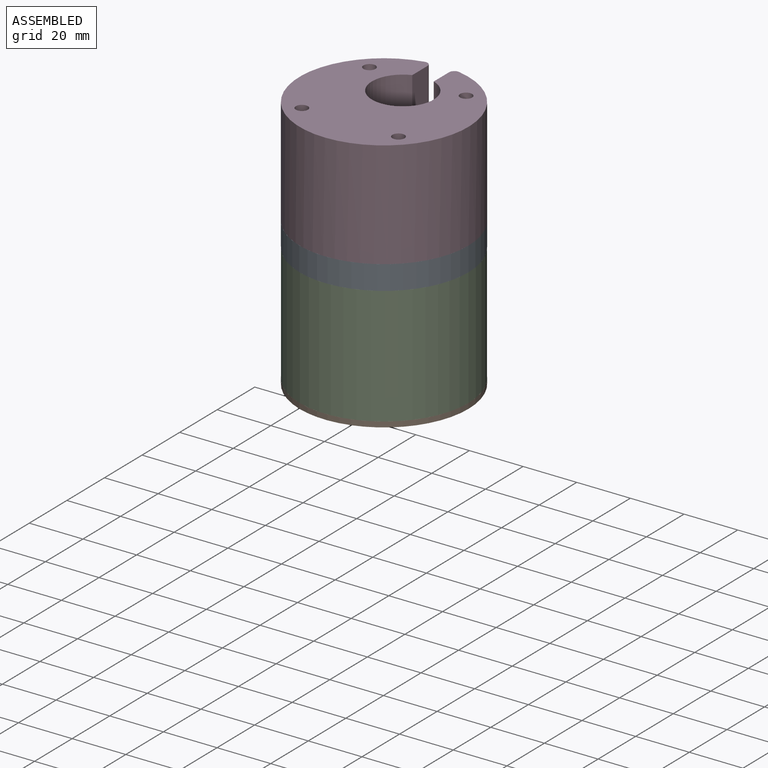
[diagram: assembled view]
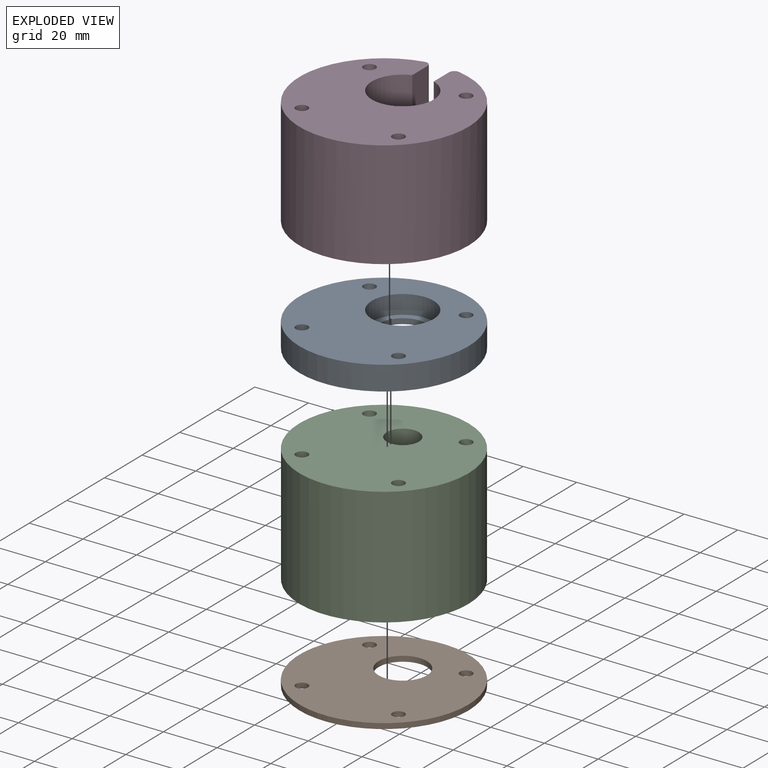
[diagram: exploded view]
GUIDED TOUR — MATED ASSEMBLY (Onshape document 0765a1a9eaeadbc00bb44b96, AutoMate assembly 0765a1a9eaeadbc00bb44b96_00cfe46cb343527916e07001_60054153e6afa63aeb58dfe5_default)

This assembly has 4 components, labeled P0..P3 below (a component is one placed occurrence of a part; the same part can appear more than once), held together by 3 mates. A mate is a constraint between two components; its type names the relative motion it leaves free:
  FASTENED — locks the two components together rigidly (no relative motion).
Axis/direction vectors are unit vectors and 'through' points are millimeter coordinates, both in the assembly's world frame.

MATES
  1. FASTENED "Fastened 2": P2 <-> P0, direction (0.000, 0.000, 1.000) through (-1.60, 12.60, 25.58) mm
  2. FASTENED "Fastened 3": P0 <-> P3, direction (0.000, 0.000, 1.000) through (-1.60, 12.60, 34.58) mm
  3. FASTENED "Fastened 1": P1 <-> P2, direction (0.000, 0.000, 1.000) through (-1.60, 12.60, -18.42) mm

ASSEMBLY ORDER
  1. P3 — the base component [order verified]
  2. P0 [order verified]
  3. P2 [order verified]
  4. P1 [order verified]
Order-tag legend:
  [order verified] — this step's position reverses a verified removal order: the component was checked to insert without passing through the ones already placed.

Of the 4 components, 1 carries the full construction recipe — the FeatureScript program that regenerates the part's solid from scratch; the rest are supplied as boundary geometry only.
Each toured component is shown spotlighted twice — in the assembled view, then in the exploded view, where a leader line traces a displaced component back to its assembled socket (saturated green if recipe-attached, orange if geometry-only; every other component desaturated gray) — followed by its recipe or geometry summary and the mates that hold it.
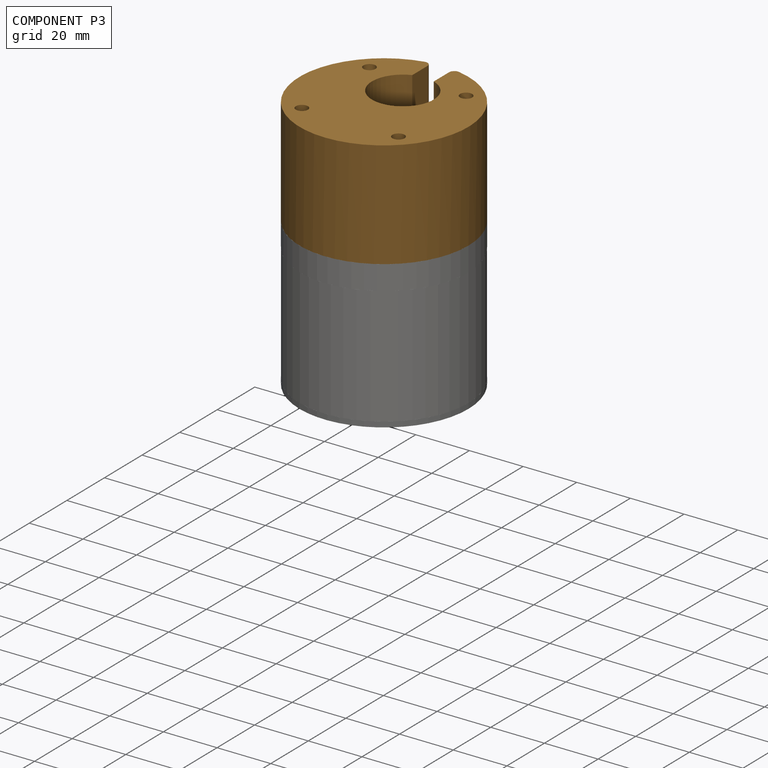
[diagram: component P3 — assembled]
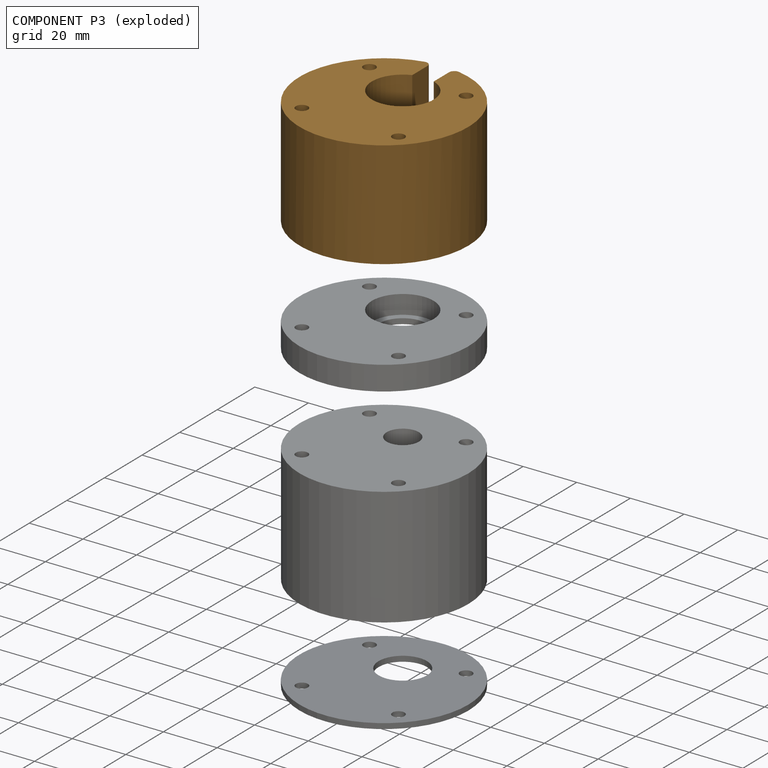
[diagram: component P3 — exploded]
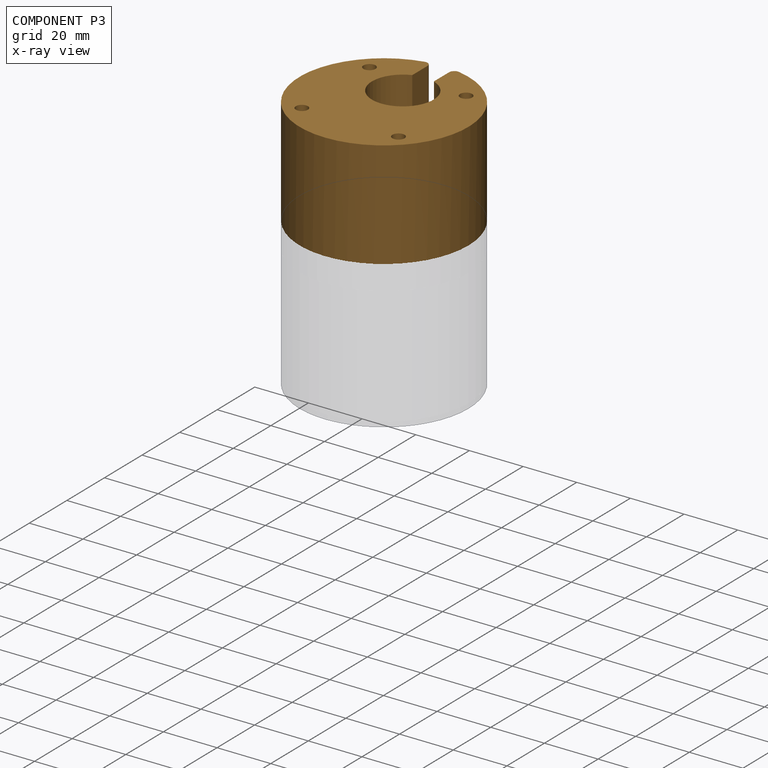
[diagram: component P3 — x-ray view]
COMPONENT P3 — geometry summary (no construction recipe available for this part):
  bounding box: 65.6 x 63.0 x 40.0 mm
  B-rep topology: 1 solid, 16 faces, 84 edges
  volume: 103326 mm^3 (63% of its bounding box)
  symmetry: mirror-symmetric across its x mid-plane
Held by: FASTENED mate "Fastened 3" to P0.
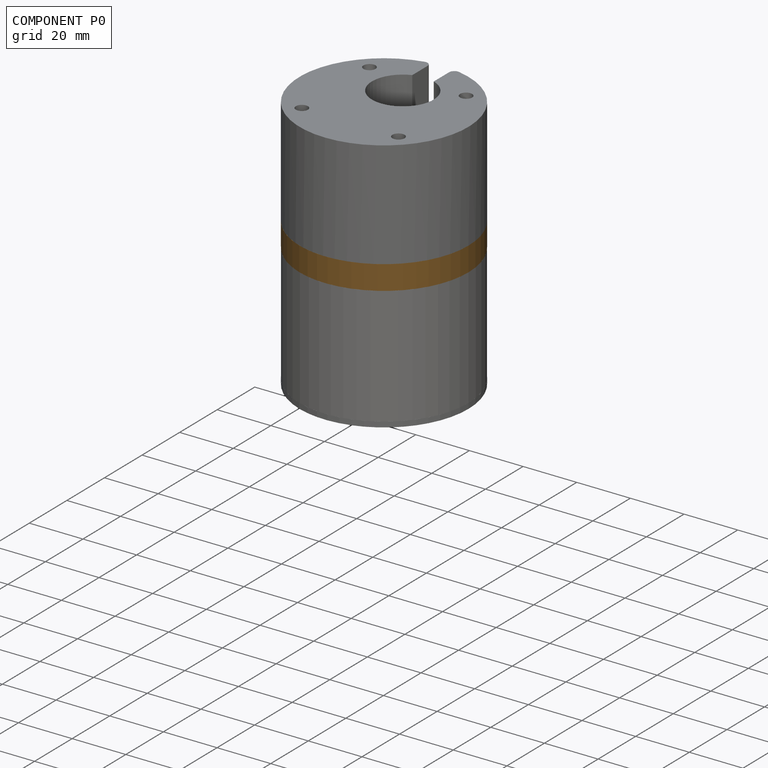
[diagram: component P0 — assembled]
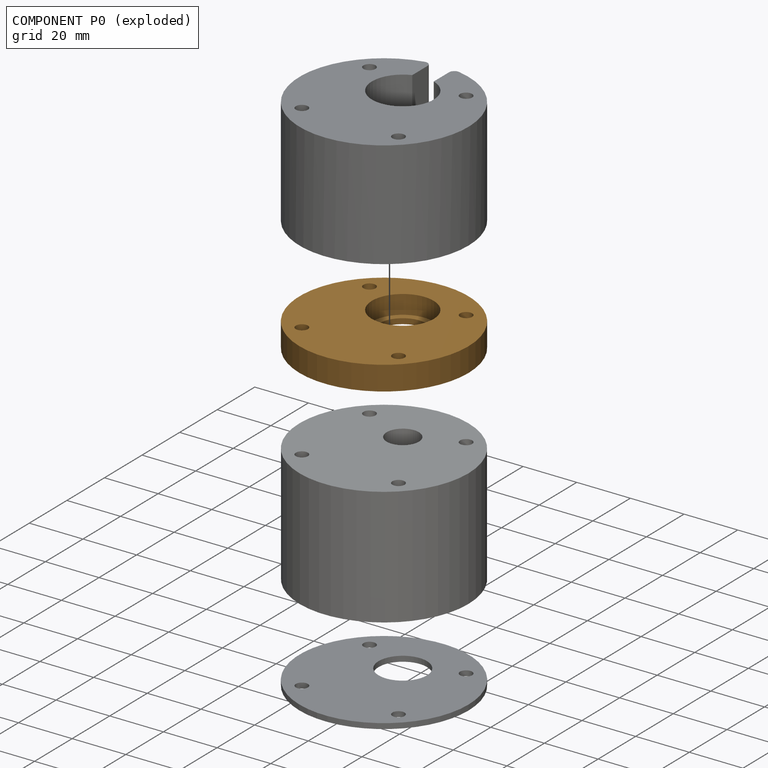
[diagram: component P0 — exploded]
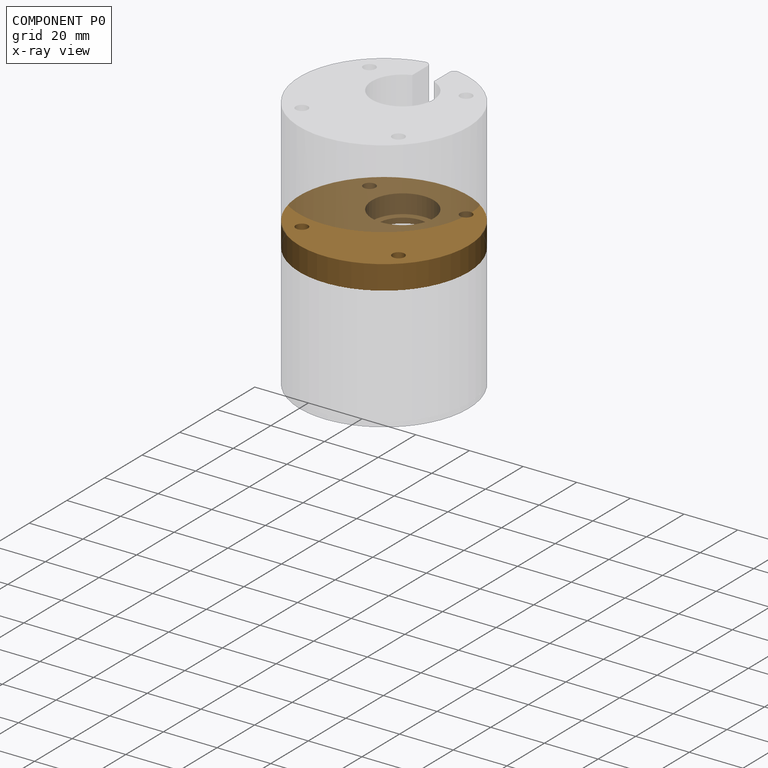
[diagram: component P0 — x-ray view]
COMPONENT P0 — geometry summary (no construction recipe available for this part):
  bounding box: 63.0 x 63.0 x 9.0 mm
  B-rep topology: 1 solid, 10 faces, 42 edges
  volume: 24065 mm^3 (67% of its bounding box)
  symmetry: mirror-symmetric across its x mid-plane
Held by: FASTENED mate "Fastened 2" to P2; FASTENED mate "Fastened 3" to P3.
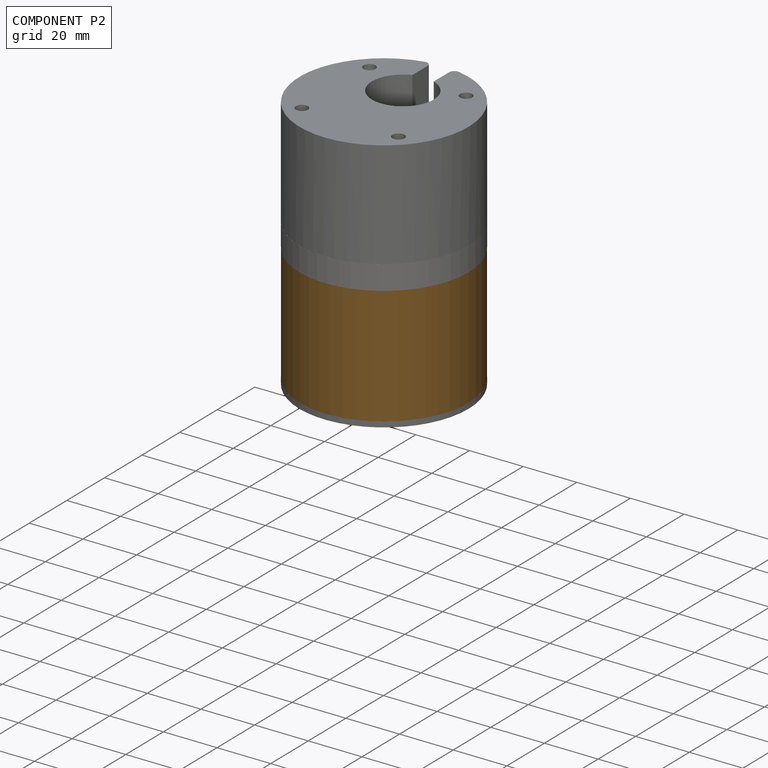
[diagram: component P2 — assembled]
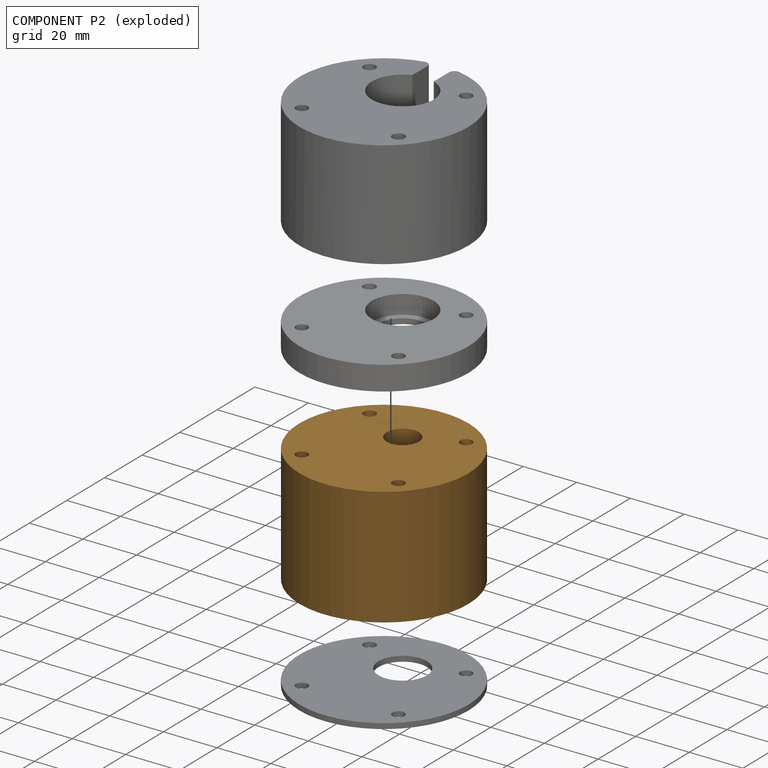
[diagram: component P2 — exploded]
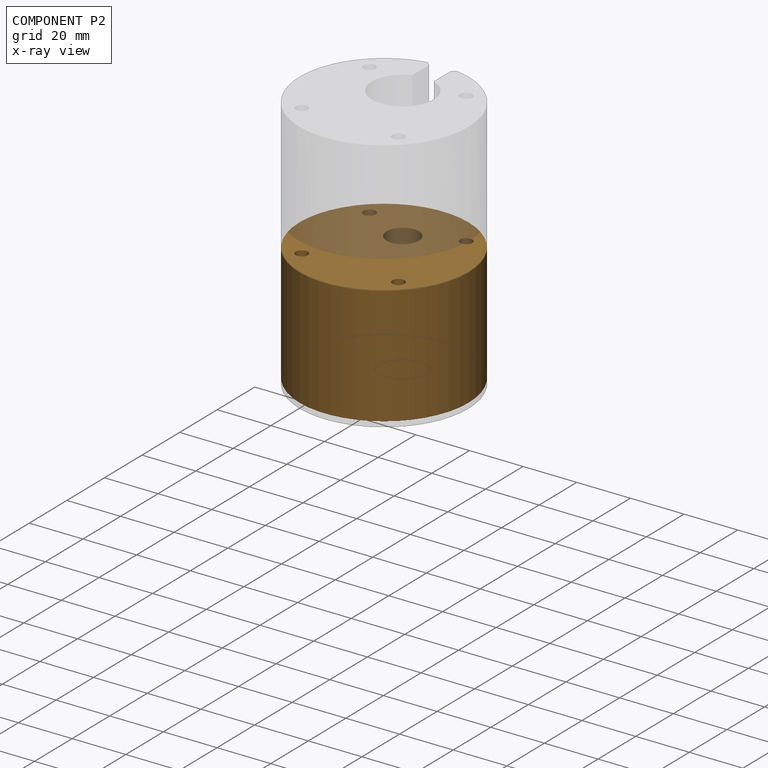
[diagram: component P2 — x-ray view]
COMPONENT P2 — geometry summary (no construction recipe available for this part):
  bounding box: 63.0 x 63.0 x 44.0 mm
  B-rep topology: 1 solid, 12 faces, 48 edges
  volume: 126984 mm^3 (73% of its bounding box)
  symmetry: mirror-symmetric across its x mid-plane
Held by: FASTENED mate "Fastened 2" to P0; FASTENED mate "Fastened 1" to P1.
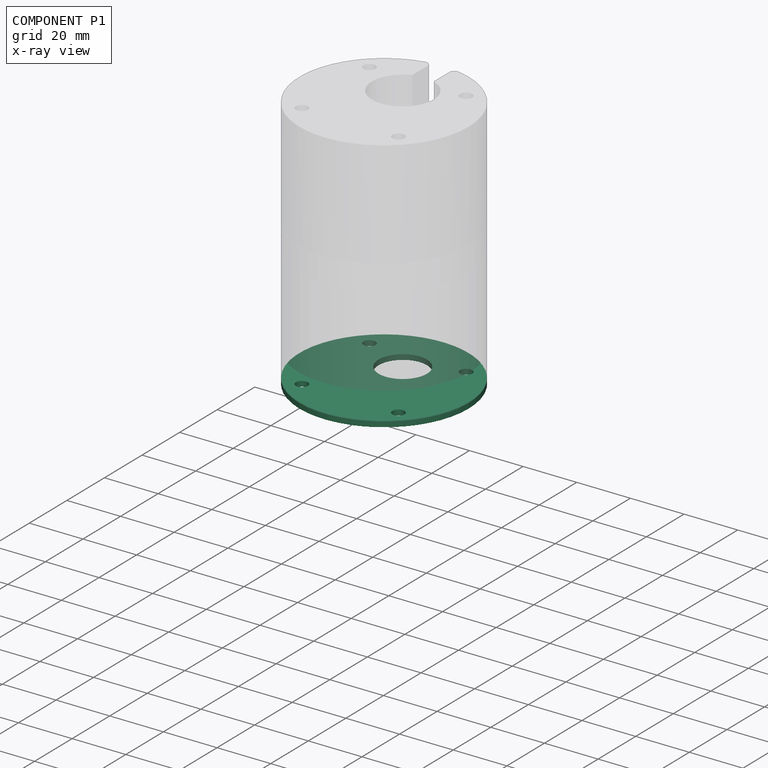
[diagram: component P1 — x-ray view]
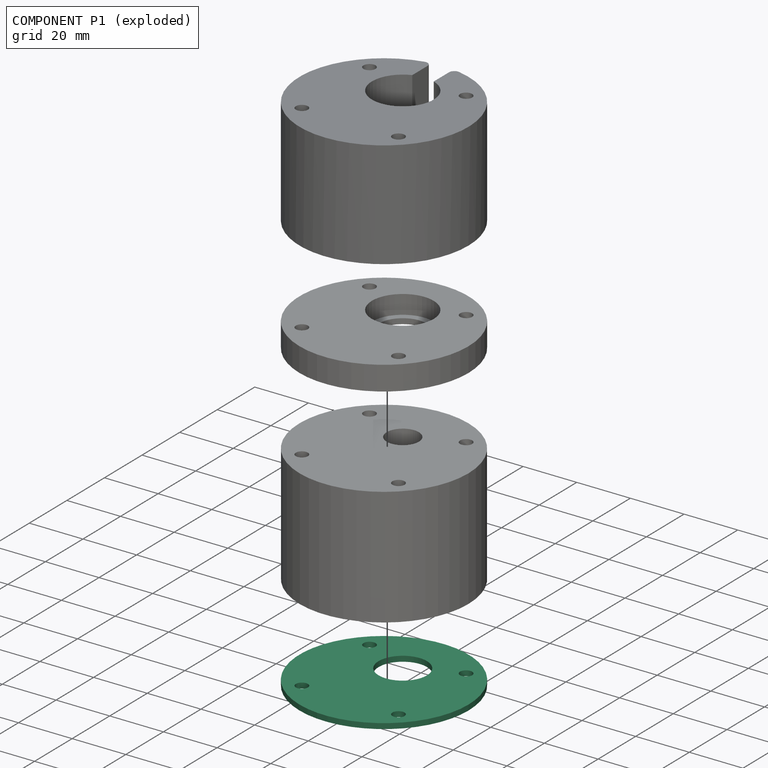
[diagram: component P1 — exploded]
COMPONENT P1 — recipe-attached (CADFS 00295899, mesh-verified: the recipe's output STEP matches this component's geometry to below the mesh-comparison resolution (tessellation chordal tolerance ~0.134 mm)).
Held by: FASTENED mate "Fastened 1" to P2.
Construction recipe (FeatureScript — the CAD program that rebuilds this solid; sketch coordinates are in the units given by the * unit suffixes, e.g. mm):

FeatureScript 1511;
import(path : "onshape/std/geometry.fs", version : "1511.0");
import(path : "onshape/std/common.fs", version : "1511.0");
const mm = millimeter;
const VERTEX = EntityType.VERTEX;
const EDGE = EntityType.EDGE;
const FACE = EntityType.FACE;
const BODY = EntityType.BODY;
function v(x, y){return vector(x, y);}
function OD(order){return orderDisambiguation(order);}
function OSD(set){return originalSetDisambiguation(set);}
function TD(topology){return topologyDisambiguation(topology);}
function TDD(query){return trueDependencyDisambiguation(query);}
function sQuery(a, b, c) {return sketchEntityQuery(a, b, c);}

annotation { "Feature Type Name" : "Feature", "Feature Type Description" : "" }
export const myFeature = defineFeature(function(context is Context, id is Id, definition is map)
    precondition{}
    {
        {
            var Q0;
            Q0=qCreatedBy(makeId("Top.planeOp"),FACE);
            var sketch = newSketch(context, id + "F0", { "sketchPlane" : qUnion([Q0])});
            skCircle(sketch, "E0", {"center": v(0, 3) * mm, "radius": 11.5 * mm});
            skCircle(sketch, "E1", {"center": v(0, 3) * mm, "radius": 6 * mm});
            skLineSegment(sketch, "E2.bottom", {"start": v(-18, -25) * mm, "end": v(18, -25) * mm, "construction": true});
            skLineSegment(sketch, "E2.top", {"start": v(-18, 11) * mm, "end": v(18, 11) * mm, "construction": true});
            skLineSegment(sketch, "E2.left", {"start": v(-18, -25) * mm, "end": v(-18, 11) * mm, "construction": true});
            skLineSegment(sketch, "E2.right", {"start": v(18, -25) * mm, "end": v(18, 11) * mm, "construction": true});
            skLineSegment(sketch, "E3", {"start": v(18, 11) * mm, "end": v(-18, -25) * mm, "construction": true});
            skLineSegment(sketch, "E4", {"start": v(-18, 11) * mm, "end": v(18, -25) * mm, "construction": true});
            skCircle(sketch, "E5", {"center": v(0, -7) * mm, "radius": 31.5 * mm});
            skCircle(sketch, "E6", {"center": v(-18, 11) * mm, "radius": 2.25 * mm});
            skCircle(sketch, "E7.MirrorC", {"center": v(18, 11) * mm, "radius": 2.25 * mm});
            skCircle(sketch, "E8", {"center": v(-18, -25) * mm, "radius": 2.25 * mm});
            skCircle(sketch, "E9", {"center": v(18, -25) * mm, "radius": 2.25 * mm});
            skCircle(sketch, "E10", {"center": v(0, 3) * mm, "radius": 9 * mm});
            skLineSegment(sketch, "E11", {"start": v(0, -7) * mm, "end": v(0, 3) * mm, "construction": true});
            skSolve(sketch);
        }
        {
            var Q0;
            Q0=makeQuery(id+"F0.imprint","IMPRINT",FACE,{"disambiguationData":[TD([[makeQuery(id+"F0.imprint","IMPRINT",EDGE,{"derivedFrom":sQuery(id+"F0.wireOp",EDGE,"E5")}),1.0]])]});
            var Q1;
            Q1=makeQuery(id+"F0.imprint","IMPRINT",FACE,{"disambiguationData":[TD([[makeQuery(id+"F0.imprint","IMPRINT",EDGE,{"derivedFrom":sQuery(id+"F0.wireOp",EDGE,"E0")}),1.0]])]});
            extrude(context, id + "F1", {"entities" : qUnion([Q0, Q1]), "oppositeDirection" : true, "depth" : 2 * mm});
        }
    });
PROVENANCE & LICENSES
Assembly (occurrences, transforms, mates, per-part STEP geometry): AutoMate dataset, Zenodo record 7776208, CC0.
Construction recipes: CADFS (HuggingFace VladPyatov/CADFS, CC-BY-4.0, layered over the ABC dataset), FeatureScript reconstruction programs keyed by ABC model id.
Join: ABC meta listings map ABC model id -> Onshape documentId; within a shared document, parts are matched by geometric signature (bounding-box dims + volume at 0.1% relative tolerance, exact B-rep face/solid counts).
Verification: 1 of this assembly's 4 components carries a recipe attachment, and every attachment is mesh-verified: the CADFS STEP and the AutoMate member STEP were compared as meshes in their shared local frame (symmetric sampled-point-to-mesh distance); worst across the 1 attachment: below the mesh-comparison resolution (tessellation chordal tolerance ~0.134 mm) on a 89 mm part.
Renders: orthographic iso camera (az 35 / el 25); the floor grid conveys scale (grid pitch printed in each image; no ruler). In the exploded view each component is displaced by its stored offset vector: the offsets alone carry the explosion direction (mate normal/axis signs are not orientation cues and do not encode it), and separation distances are assigned per mate-chain, not proportionally to assembly-order depth.
